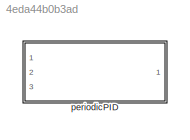
MODEL slx_4eda44b0b3ad
KIND library
CONFIG AbsTol = auto
CONFIG EnableMultiTasking = off
CONFIG FixedStep = auto
CONFIG MaxStep = auto
CONFIG MinStep = auto
CONFIG RelTol = 1e-3
CONFIG SampleTimeConstraint = Unconstrained
CONFIG SolverName = VariableStepAuto
CONFIG StartTime = 0.0
CONFIG StopTime = 10.0
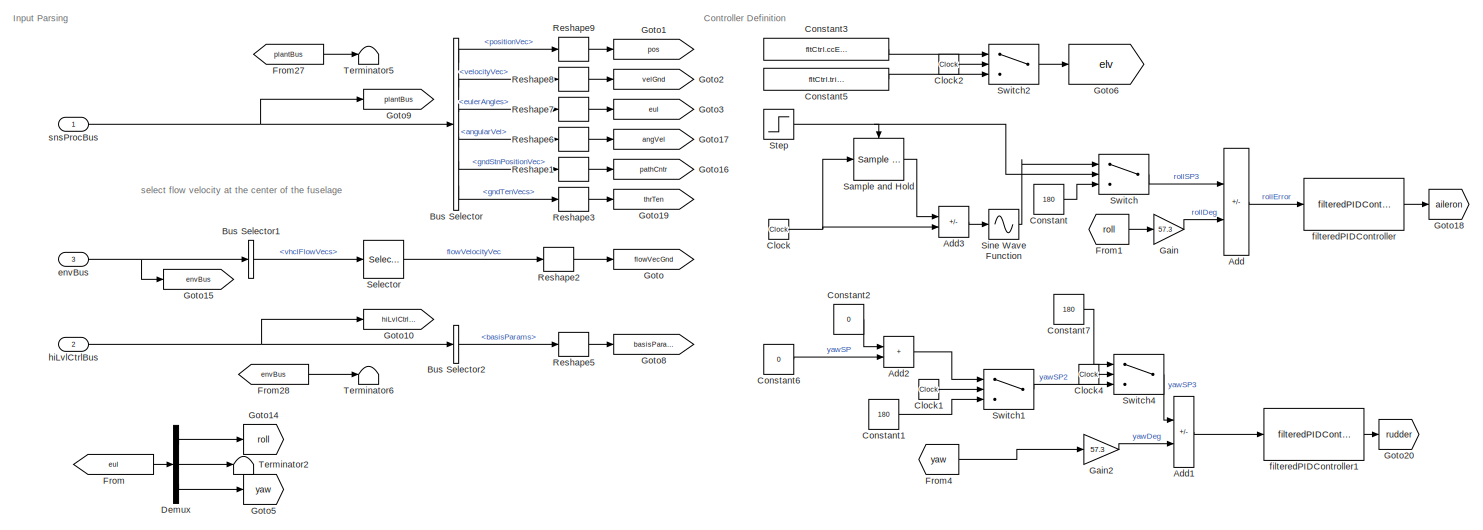
[diagram: periodicPID - part 1/2, most of the canvas]
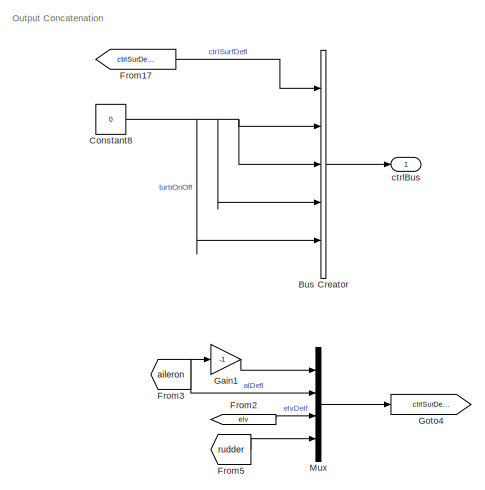
[diagram: periodicPID - part 2/2, right side, full height]
BLOCK [SubSystem] periodicPID
  Ports = [3, 1]
  RequestExecContextInheritance = off
BLOCK [Sum] periodicPID/Add
  IconShape = rectangular
  Inputs = +-
  Ports = [2, 1]
BLOCK [Sum] periodicPID/Add1
  IconShape = rectangular
  Inputs = +-
  Ports = [2, 1]
BLOCK [Sum] periodicPID/Add2
  IconShape = rectangular
  Ports = [2, 1]
BLOCK [Sum] periodicPID/Add3
  IconShape = rectangular
  Inputs = -+
  Ports = [2, 1]
BLOCK [BusCreator] periodicPID/Bus Creator
  DisplayOption = bar
  InheritFromInputs = off
  Inputs = 5
  OutDataTypeStr = Bus: fltCtrlBus
  Ports = [5, 1]
BLOCK [BusSelector] periodicPID/Bus Selector
  OutputSignals = positionVec,velocityVec,eulerAngles,angularVel,gndStnPositionVec,gndTenVecs
  Ports = [1, 6]
BLOCK [BusSelector] periodicPID/Bus Selector1
  OutputSignals = vhclFlowVecs
  Ports = [1, 1]
BLOCK [BusSelector] periodicPID/Bus Selector2
  OutputSignals = basisParams
  Ports = [1, 1]
BLOCK [Clock] periodicPID/Clock
BLOCK [Clock] periodicPID/Clock1
BLOCK [Clock] periodicPID/Clock2
BLOCK [Clock] periodicPID/Clock4
BLOCK [Constant] periodicPID/Constant
  Value = 180
BLOCK [Constant] periodicPID/Constant1
  Value = 180
BLOCK [Constant] periodicPID/Constant2
  Value = 0
BLOCK [Constant] periodicPID/Constant3
  Value = fltCtrl.ccElevator.Value
BLOCK [Constant] periodicPID/Constant5
  Value = fltCtrl.trimElevator.Value
BLOCK [Constant] periodicPID/Constant6
  Value = 0
BLOCK [Constant] periodicPID/Constant7
  Value = 180
BLOCK [Constant] periodicPID/Constant8
  Value = 0
BLOCK [Demux] periodicPID/Demux
  Outputs = 3
  Ports = [1, 3]
BLOCK [From] periodicPID/From
  GotoTag = eul
BLOCK [From] periodicPID/From1
  GotoTag = roll
BLOCK [From] periodicPID/From17
  GotoTag = ctrlSurDefl
BLOCK [From] periodicPID/From2
  GotoTag = elv
BLOCK [From] periodicPID/From27
  GotoTag = plantBus
BLOCK [From] periodicPID/From28
  GotoTag = envBus
BLOCK [From] periodicPID/From3
  GotoTag = aileron
BLOCK [From] periodicPID/From4
  GotoTag = yaw
BLOCK [From] periodicPID/From5
  GotoTag = rudder
BLOCK [Gain] periodicPID/Gain
  Gain = 57.3
BLOCK [Gain] periodicPID/Gain1
  Gain = -1
BLOCK [Gain] periodicPID/Gain2
  Gain = 57.3
BLOCK [Goto] periodicPID/Goto
  GotoTag = flowVecGnd
BLOCK [Goto] periodicPID/Goto1
  GotoTag = pos
BLOCK [Goto] periodicPID/Goto10
  GotoTag = hiLvlCtrlBus
BLOCK [Goto] periodicPID/Goto14
  GotoTag = roll
BLOCK [Goto] periodicPID/Goto15
  GotoTag = envBus
BLOCK [Goto] periodicPID/Goto16
  GotoTag = pathCntr
BLOCK [Goto] periodicPID/Goto17
  GotoTag = angVel
BLOCK [Goto] periodicPID/Goto18
  GotoTag = aileron
BLOCK [Goto] periodicPID/Goto19
  GotoTag = thrTen
BLOCK [Goto] periodicPID/Goto2
  GotoTag = velGnd
BLOCK [Goto] periodicPID/Goto20
  GotoTag = rudder
BLOCK [Goto] periodicPID/Goto3
  GotoTag = eul
BLOCK [Goto] periodicPID/Goto4
  GotoTag = ctrlSurDefl
BLOCK [Goto] periodicPID/Goto5
  GotoTag = yaw
BLOCK [Goto] periodicPID/Goto6
  GotoTag = elv
BLOCK [Goto] periodicPID/Goto8
  GotoTag = basisParams
BLOCK [Goto] periodicPID/Goto9
  GotoTag = plantBus
BLOCK [Mux] periodicPID/Mux
  DisplayOption = bar
  Ports = [4, 1]
BLOCK [Reshape] periodicPID/Reshape1
  OutputDimensionality = Column vector (2-D)
  Ports = [1, 1]
BLOCK [Reshape] periodicPID/Reshape2
  OutputDimensionality = Column vector (2-D)
  Ports = [1, 1]
BLOCK [Reshape] periodicPID/Reshape3
  OutputDimensionality = Column vector (2-D)
  Ports = [1, 1]
BLOCK [Reshape] periodicPID/Reshape5
  OutputDimensionality = Column vector (2-D)
  Ports = [1, 1]
BLOCK [Reshape] periodicPID/Reshape6
  OutputDimensionality = Column vector (2-D)
  Ports = [1, 1]
BLOCK [Reshape] periodicPID/Reshape7
  OutputDimensionality = Column vector (2-D)
  Ports = [1, 1]
BLOCK [Reshape] periodicPID/Reshape8
  OutputDimensionality = Column vector (2-D)
  Ports = [1, 1]
BLOCK [Reshape] periodicPID/Reshape9
  OutputDimensionality = Column vector (2-D)
  Ports = [1, 1]
BLOCK [Reference] periodicPID/Sample and Hold  REF=dspsigops/Sample
and Hold
  Ports = [1, 1, 0, 1]
  SourceBlock = dspsigops/Sample\nand Hold
  SourceProductBaseCode = DS
  SourceType = Sample and Hold
BLOCK [Selector] periodicPID/Selector
  IndexOptions = Select all,Index vector (dialog)
  Indices = [1 3],5
  InputPortWidth = 3
  NumberOfDimensions = 2
  OutputSizes = 1,1
  Ports = [1, 1]
BLOCK [Sin] periodicPID/Sine Wave Function
  Amplitude = fltctrl.rollAmp.Value
  Bias = 180
  Frequency = fltCtrl.frequency.Value
  Ports = [1, 1]
  SampleTime = 0
  TimeSource = Use external signal
BLOCK [Step] periodicPID/Step
  SampleTime = 0
  Time = fltCtrl.startCtrl.Value
BLOCK [Switch] periodicPID/Switch
  Criteria = u2 > Threshold
  InputSameDT = off
  SaturateOnIntegerOverflow = off
BLOCK [Switch] periodicPID/Switch1
  Criteria = u2 > Threshold
  InputSameDT = off
  SaturateOnIntegerOverflow = off
  Threshold = startControl
BLOCK [Switch] periodicPID/Switch2
  Criteria = u2 > Threshold
  InputSameDT = off
  SaturateOnIntegerOverflow = off
  Threshold = fltCtrl.startControl.Value
BLOCK [Switch] periodicPID/Switch4
  Criteria = u2 > Threshold
  InputSameDT = off
  SaturateOnIntegerOverflow = off
  Threshold = 32
BLOCK [Terminator] periodicPID/Terminator2
BLOCK [Terminator] periodicPID/Terminator5
BLOCK [Terminator] periodicPID/Terminator6
BLOCK [Outport] periodicPID/ctrlBus
  OutDataTypeStr = Bus: fltCtrlBus
  VectorParamsAs1DForOutWhenUnconnected = off
BLOCK [Inport] periodicPID/envBus
  OutDataTypeStr = Bus: envBus
  Port = 3
BLOCK [Reference] periodicPID/filteredPIDController  REF=filteredPIDController_ul/filteredPIDController
  Ports = [1, 1]
  SourceBlock = filteredPIDController_ul/filteredPIDController
BLOCK [Reference] periodicPID/filteredPIDController1  REF=filteredPIDController_ul/filteredPIDController
  Ports = [1, 1]
  SourceBlock = filteredPIDController_ul/filteredPIDController
BLOCK [Inport] periodicPID/hiLvlCtrlBus
  OutDataTypeStr = Bus: hiLvlCtrlBus
  Port = 2
BLOCK [Inport] periodicPID/snsProcBus
  OutDataTypeStr = Bus: sensorsProcessingBus
ANNOTATION periodicPID: Controller Definition
ANNOTATION periodicPID: Input Parsing
ANNOTATION periodicPID: Output Concatenation
ANNOTATION periodicPID: select flow velocity at the center of the fuselage
LINE periodicPID/Add1:1 -> periodicPID/filteredPIDController1:1
LINE periodicPID/Add2:1 -> periodicPID/Switch1:1
LINE periodicPID/Add3:1 -> periodicPID/Sine Wave Function:1
LINE periodicPID/Add:1 -> periodicPID/filteredPIDController:1
LINE periodicPID/Bus Creator:1 -> periodicPID/ctrlBus:1
LINE periodicPID/Bus Selector1:1 -> periodicPID/Selector:1
LINE periodicPID/Bus Selector2:1 -> periodicPID/Reshape5:1
LINE periodicPID/Bus Selector:1 -> periodicPID/Reshape9:1
LINE periodicPID/Bus Selector:2 -> periodicPID/Reshape8:1
LINE periodicPID/Bus Selector:3 -> periodicPID/Reshape7:1
LINE periodicPID/Bus Selector:4 -> periodicPID/Reshape6:1
LINE periodicPID/Bus Selector:5 -> periodicPID/Reshape1:1
LINE periodicPID/Bus Selector:6 -> periodicPID/Reshape3:1
LINE periodicPID/Clock1:1 -> periodicPID/Switch1:2
LINE periodicPID/Clock2:1 -> periodicPID/Switch2:2
LINE periodicPID/Clock4:1 -> periodicPID/Switch4:2
NET periodicPID/Clock:1 -> periodicPID/Add3:2, periodicPID/Sample and Hold:1
LINE periodicPID/Constant1:1 -> periodicPID/Switch1:3
LINE periodicPID/Constant2:1 -> periodicPID/Add2:1
LINE periodicPID/Constant3:1 -> periodicPID/Switch2:1
LINE periodicPID/Constant5:1 -> periodicPID/Switch2:3
LINE periodicPID/Constant6:1 -> periodicPID/Add2:2
LINE periodicPID/Constant7:1 -> periodicPID/Switch4:1
NET periodicPID/Constant8:1 -> periodicPID/Bus Creator:2, periodicPID/Bus Creator:3, periodicPID/Bus Creator:4, periodicPID/Bus Creator:5
LINE periodicPID/Constant:1 -> periodicPID/Switch:3
LINE periodicPID/Demux:1 -> periodicPID/Goto14:1
LINE periodicPID/Demux:2 -> periodicPID/Terminator2:1
LINE periodicPID/Demux:3 -> periodicPID/Goto5:1
LINE periodicPID/From17:1 -> periodicPID/Bus Creator:1
LINE periodicPID/From1:1 -> periodicPID/Gain:1
LINE periodicPID/From27:1 -> periodicPID/Terminator5:1
LINE periodicPID/From28:1 -> periodicPID/Terminator6:1
LINE periodicPID/From2:1 -> periodicPID/Mux:3
NET periodicPID/From3:1 -> periodicPID/Gain1:1, periodicPID/Mux:2
LINE periodicPID/From4:1 -> periodicPID/Gain2:1
LINE periodicPID/From5:1 -> periodicPID/Mux:4
LINE periodicPID/From:1 -> periodicPID/Demux:1
LINE periodicPID/Gain1:1 -> periodicPID/Mux:1
LINE periodicPID/Gain2:1 -> periodicPID/Add1:2
LINE periodicPID/Gain:1 -> periodicPID/Add:2
LINE periodicPID/Mux:1 -> periodicPID/Goto4:1
LINE periodicPID/Reshape1:1 -> periodicPID/Goto16:1
LINE periodicPID/Reshape2:1 -> periodicPID/Goto:1
LINE periodicPID/Reshape3:1 -> periodicPID/Goto19:1
LINE periodicPID/Reshape5:1 -> periodicPID/Goto8:1
LINE periodicPID/Reshape6:1 -> periodicPID/Goto17:1
LINE periodicPID/Reshape7:1 -> periodicPID/Goto3:1
LINE periodicPID/Reshape8:1 -> periodicPID/Goto2:1
LINE periodicPID/Reshape9:1 -> periodicPID/Goto1:1
LINE periodicPID/Sample and Hold:1 -> periodicPID/Add3:1
LINE periodicPID/Selector:1 -> periodicPID/Reshape2:1
LINE periodicPID/Sine Wave Function:1 -> periodicPID/Switch:1
NET periodicPID/Step:1 -> periodicPID/Sample and Hold:trigger, periodicPID/Switch:2
LINE periodicPID/Switch1:1 -> periodicPID/Switch4:3
LINE periodicPID/Switch2:1 -> periodicPID/Goto6:1
LINE periodicPID/Switch4:1 -> periodicPID/Add1:1
LINE periodicPID/Switch:1 -> periodicPID/Add:1
NET periodicPID/envBus:1 -> periodicPID/Bus Selector1:1, periodicPID/Goto15:1
LINE periodicPID/filteredPIDController1:1 -> periodicPID/Goto20:1
LINE periodicPID/filteredPIDController:1 -> periodicPID/Goto18:1
NET periodicPID/hiLvlCtrlBus:1 -> periodicPID/Bus Selector2:1, periodicPID/Goto10:1
NET periodicPID/snsProcBus:1 -> periodicPID/Bus Selector:1, periodicPID/Goto9:1
note: NET lines group one-source signal fan-out (src -> all destinations, sorted); 1:1 wires keep LINE
